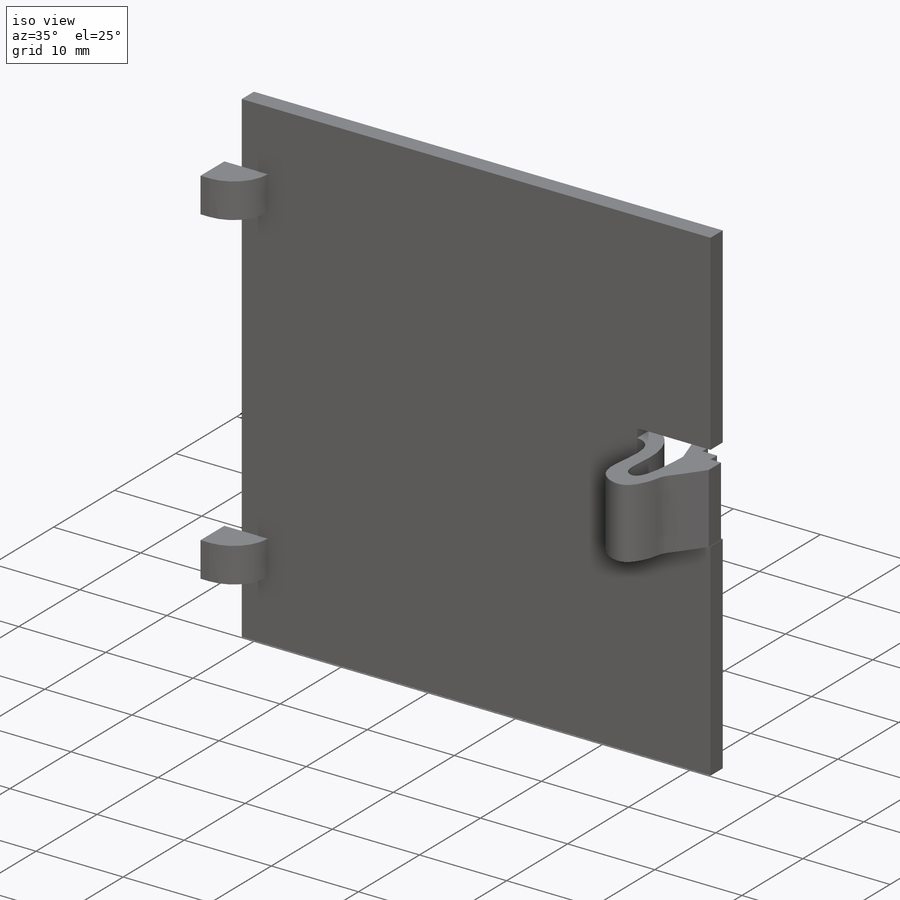
[diagram: iso view]
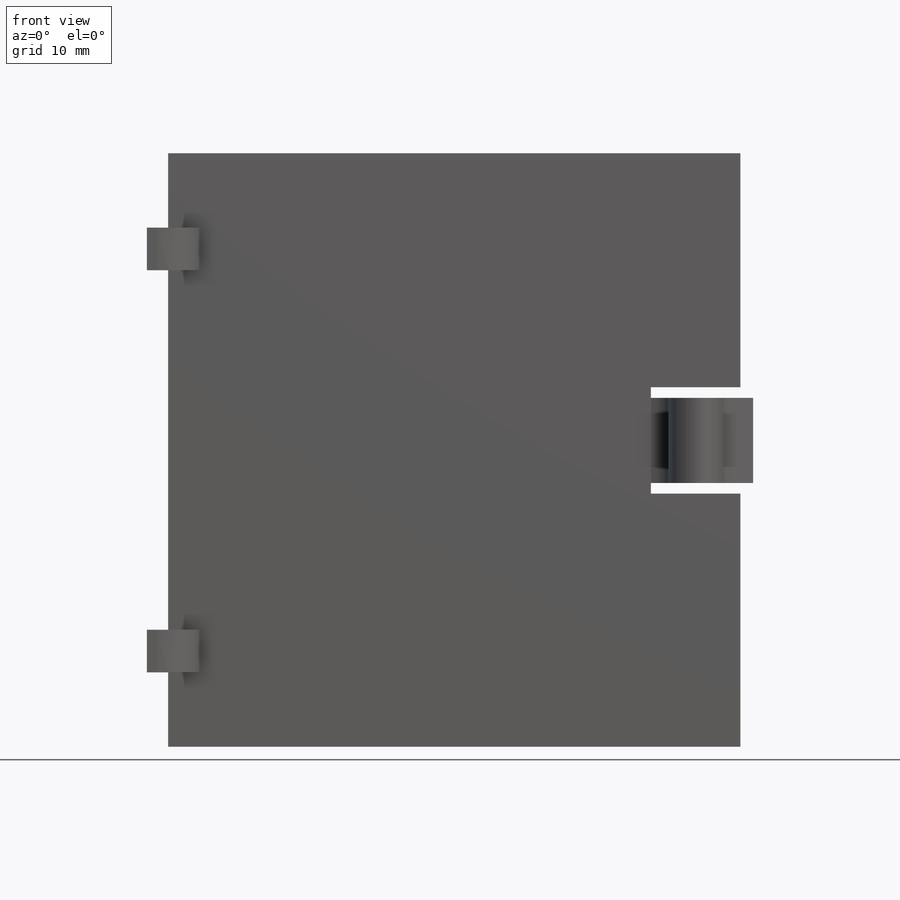
[diagram: front view]
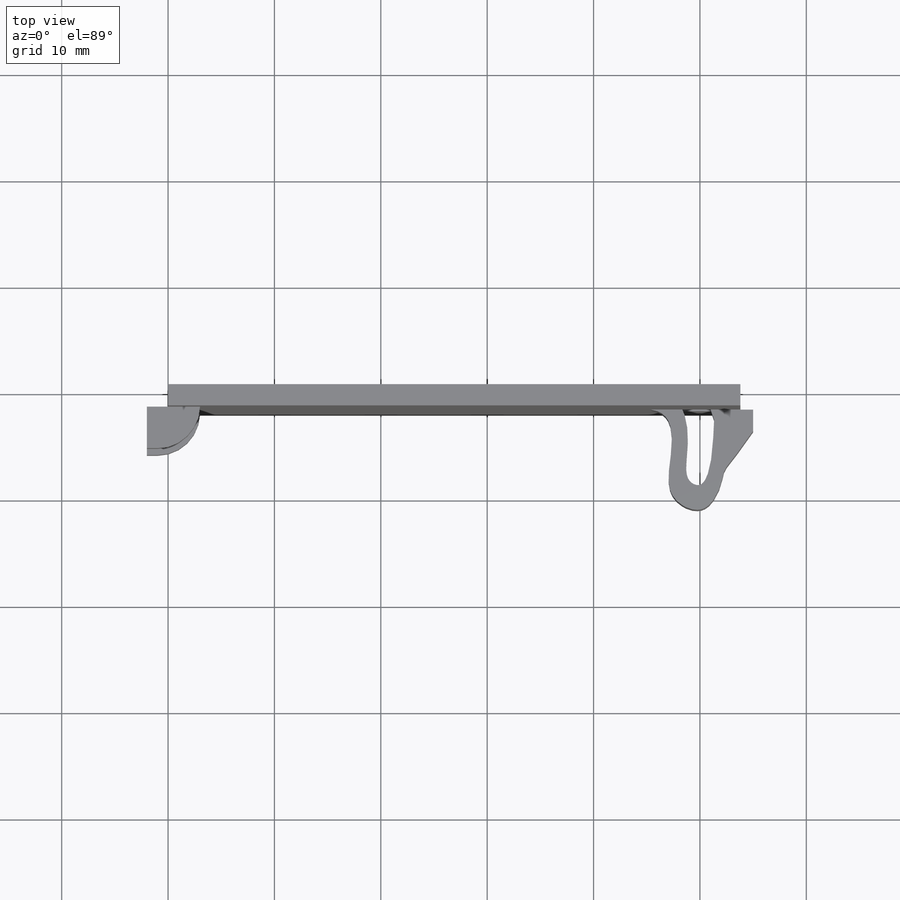
[diagram: top view]
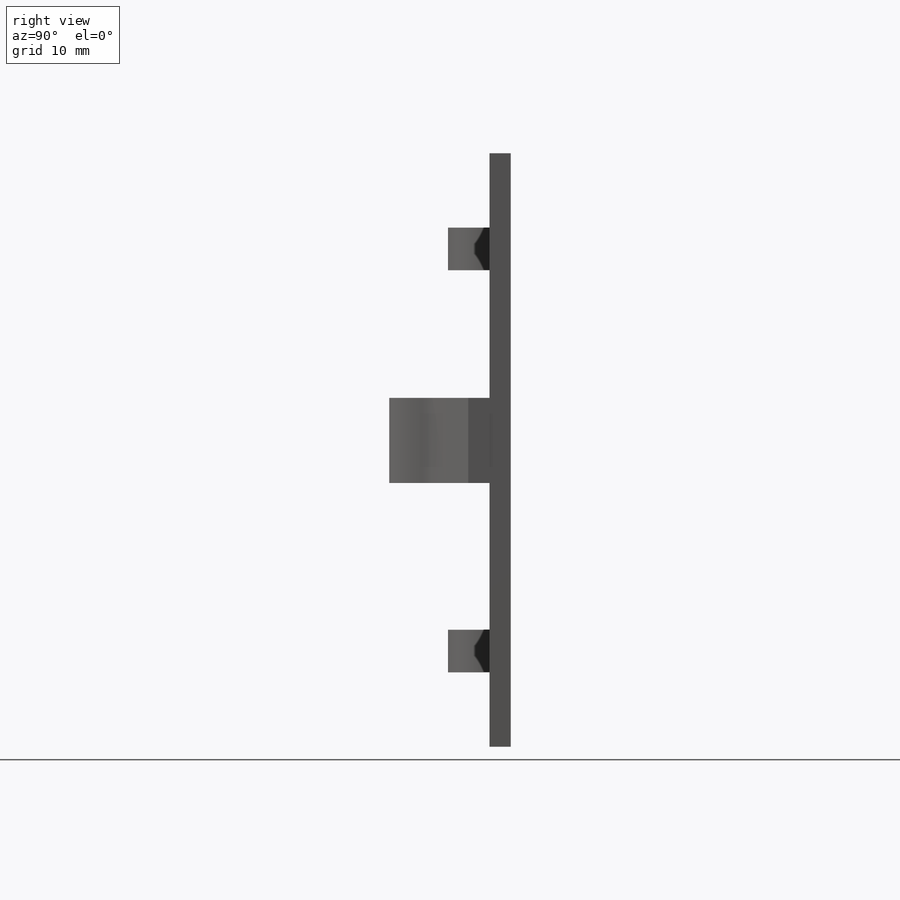
[diagram: right view]
SOLIDWORKS PART (.sldprt)
format: sldprt  version: not decoded by parser v0  size: 198,656 bytes
history: native  units: mm
features: sketch x4, plane x3, extrude x3, material x1, fillet x1, cut_extrude x1 (+9 scaffold rows collapsed)
feature tree (22):
  scaffold x9  (default folders/planes/origin — collapsed)
  material  "Matériau <non spécifié>"
  plane  "Plan de face"
  plane  "Plan de dessus"
  plane  "Plan de droite"
  sketch  "Esquisse1"  dims[D1=53.8mm D2=55.8mm]
  extrude  "Boss.-Extru.1"  Depth=2mm
  sketch  "Esquisse3"  dims[D1=5.0mm D2=3.0mm D3=5.0mm D4=3.0mm D5=4.0mm D6=4.0mm D7=7.0mm D8=7.0mm]
  extrude  "Boss.-Extru.2"  Depth=3.9mm
  fillet  "Congé1"  Radius=4mm
  sketch  "Esquisse4"  dims[D1=10.0mm D2=22.0mm]
  cut_extrude  "Enlèv. mat.-Extru.1"  Depth=7.8mm
  sketch  "Esquisse5"  dims[D1=2.0mm D2=2.0mm D3=1.2mm]
  extrude  "Boss.-Extru.3"  Depth=8mm
decode coverage: 9 of 9 modeling features carry decoded parameters
note: suppression state not decoded; provenance and decode notes live in map.json
